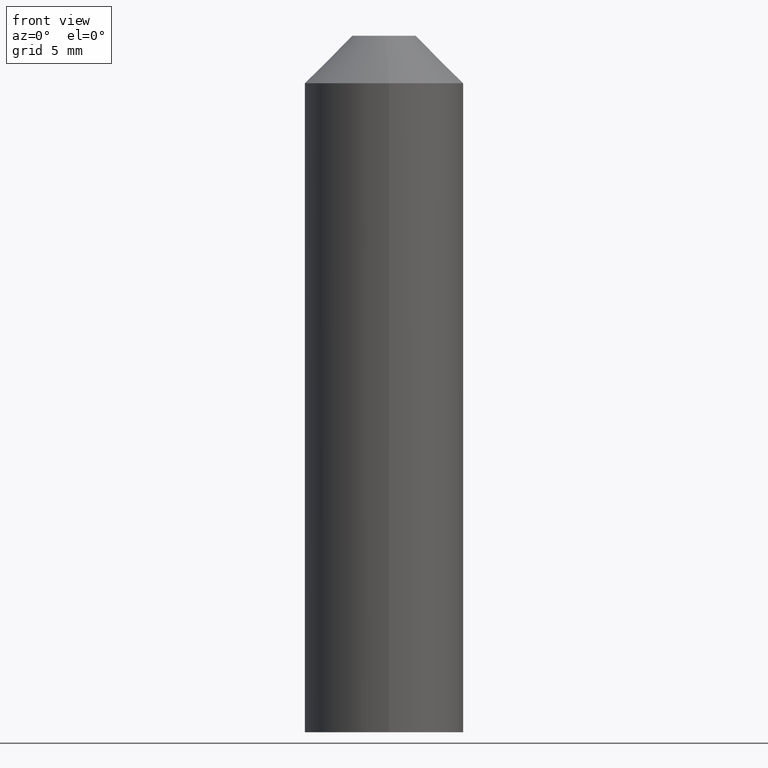
[diagram: clean part render]
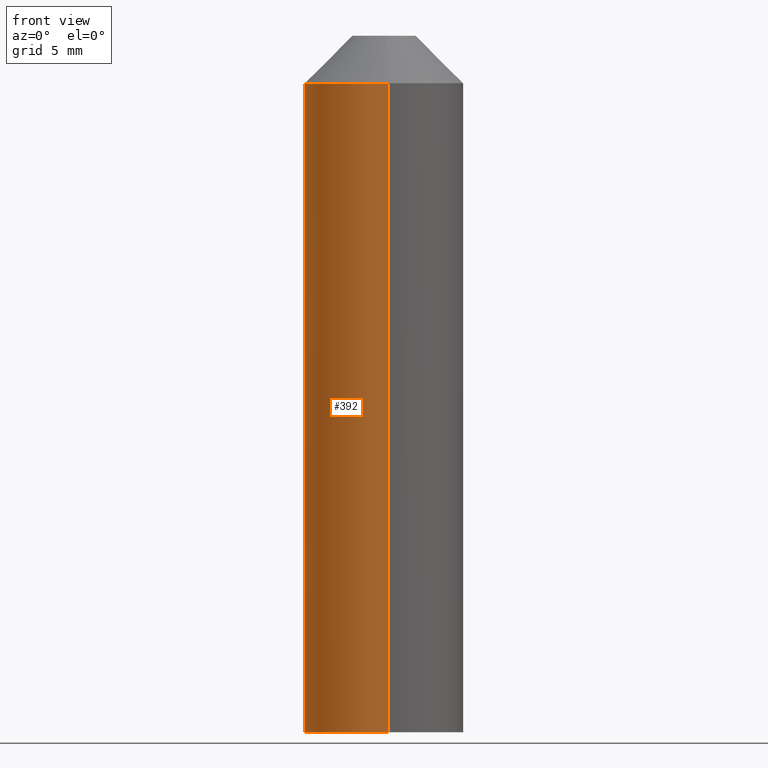
[diagram: same view with one face highlighted and labeled with its STEP entity id]
A machine part, front view. The second image highlights one B-rep face of the part: STEP entity #392.
In plain terms, the highlighted face is a freeform B-spline surface patch.
Its self-contained STEP definition (entity closure, byte-faithful):
#95=CARTESIAN_POINT('',(-0.305242697718337,4.990673992112464,40.999999999988383));
#96=VERTEX_POINT('',#95);
#121=CARTESIAN_POINT('',(0.305242697718337,-4.990673992112464,40.999999999988383));
#122=VERTEX_POINT('',#121);
#162=CARTESIAN_POINT('',(-5.0,0.0,41.0));
#163=VERTEX_POINT('',#162);
#164=CARTESIAN_POINT('',(-5.0,0.0,41.0));
#165=CARTESIAN_POINT('',(-4.999999999978329,4.703530334450193,40.999999999994188));
#166=CARTESIAN_POINT('',(-0.305242697718337,4.990673992112465,40.999999999988383));
#174=(BOUNDED_CURVE()B_SPLINE_CURVE(2,(#164,#165,#166),.UNSPECIFIED.,.F.,.U.)B_SPLINE_CURVE_WITH_KNOTS((3,3),(0.0,0.239332962238947),.UNSPECIFIED.)CURVE()GEOMETRIC_REPRESENTATION_ITEM()RATIONAL_B_SPLINE_CURVE((1.0,0.719603993286706,0.976072041666726))REPRESENTATION_ITEM(''));
#175=EDGE_CURVE('',#163,#96,#174,.T.);
#177=CARTESIAN_POINT('',(0.305242697718336,-4.990673992112466,40.999999999988376));
#178=CARTESIAN_POINT('',(0.152763816494045,-5.000000000008352,40.999999999988532));
#179=CARTESIAN_POINT('',(-4.205763E-011,-5.000000000008224,40.999999999988717));
#180=CARTESIAN_POINT('',(-5.000000000020386,-5.000000000003985,40.999999999994543));
#181=CARTESIAN_POINT('',(-5.0,0.0,41.0));
#189=(BOUNDED_CURVE()B_SPLINE_CURVE(2,(#177,#178,#179,#180,#181),.UNSPECIFIED.,.F.,.U.)B_SPLINE_CURVE_WITH_KNOTS((3,2,3),(0.739332962238947,0.750000000000000,1.0),.UNSPECIFIED.)CURVE()GEOMETRIC_REPRESENTATION_ITEM()RATIONAL_B_SPLINE_CURVE((0.976072041666726,0.987502787899842,1.0,0.707106781186548,1.0))REPRESENTATION_ITEM(''));
#190=EDGE_CURVE('',#122,#163,#189,.T.);
#289=CARTESIAN_POINT('',(-0.305242697700495,4.990673992107730,-1.134648E-013));
#290=VERTEX_POINT('',#289);
#291=CARTESIAN_POINT('',(-0.305242697718337,4.990673992112464,40.999999999988383));
#292=CARTESIAN_POINT('',(-0.305242697700495,4.990673992107730,-1.134648E-013));
#293=QUASI_UNIFORM_CURVE('',1,(#291,#292),.UNSPECIFIED.,.F.,.U.);
#294=EDGE_CURVE('',#96,#290,#293,.T.);
#298=CARTESIAN_POINT('',(0.305242697700496,-4.990673992107731,-1.133588E-013));
#299=VERTEX_POINT('',#298);
#300=CARTESIAN_POINT('',(0.305242697718337,-4.990673992112464,40.999999999988383));
#301=CARTESIAN_POINT('',(0.305242697700496,-4.990673992107731,-1.133588E-013));
#302=QUASI_UNIFORM_CURVE('',1,(#300,#301),.UNSPECIFIED.,.F.,.U.);
#303=EDGE_CURVE('',#122,#299,#302,.T.);
#338=CARTESIAN_POINT('',(0.305242697674285,-4.990673992109334,42.025000000000013));
#339=CARTESIAN_POINT('',(-4.685431294435048,-5.295916689783620,42.025000000000013));
#340=CARTESIAN_POINT('',(-4.990673992109334,-0.305242697674285,42.025000000000013));
#341=CARTESIAN_POINT('',(-5.295916689783620,4.685431294435048,42.025000000000013));
#342=CARTESIAN_POINT('',(-0.305242697674285,4.990673992109334,42.025000000000013));
#343=CARTESIAN_POINT('',(0.305242697674285,-4.990673992109334,-1.050625000000117));
#344=CARTESIAN_POINT('',(-4.685431294435048,-5.295916689783620,-1.050625000000117));
#345=CARTESIAN_POINT('',(-4.990673992109334,-0.305242697674285,-1.050625000000117));
#346=CARTESIAN_POINT('',(-5.295916689783620,4.685431294435048,-1.050625000000117));
#347=CARTESIAN_POINT('',(-0.305242697674285,4.990673992109334,-1.050625000000117));
#355=(BOUNDED_SURFACE()B_SPLINE_SURFACE(2,1,((#338,#343),(#339,#344),(#340,#345),(#341,#346),(#342,#347)),.UNSPECIFIED.,.F.,.F.,.U.)B_SPLINE_SURFACE_WITH_KNOTS((3,2,3),(2,2),(0.0,8.284271247461899,16.568542494923800),(0.0,43.075625000000130),.UNSPECIFIED.)GEOMETRIC_REPRESENTATION_ITEM()RATIONAL_B_SPLINE_SURFACE(((1.0,1.0),(0.707106781186548,0.707106781186548),(1.0,1.0),(0.707106781186548,0.707106781186548),(1.0,1.0)))REPRESENTATION_ITEM('')SURFACE());
#356=ORIENTED_EDGE('',*,*,#294,.T.);
#357=CARTESIAN_POINT('',(-5.0,0.0,-1.136868E-013));
#358=VERTEX_POINT('',#357);
#359=CARTESIAN_POINT('',(-5.0,0.0,-1.136868E-013));
#360=CARTESIAN_POINT('',(-4.999999999999998,4.703530334503726,-1.136868E-013));
#361=CARTESIAN_POINT('',(-0.305242697700495,4.990673992107732,-1.136868E-013));
#369=(BOUNDED_CURVE()B_SPLINE_CURVE(2,(#359,#360,#361),.UNSPECIFIED.,.F.,.U.)B_SPLINE_CURVE_WITH_KNOTS((3,3),(0.0,0.239332962241062),.UNSPECIFIED.)CURVE()GEOMETRIC_REPRESENTATION_ITEM()RATIONAL_B_SPLINE_CURVE((1.0,0.719603993284227,0.976072041671260))REPRESENTATION_ITEM(''));
#370=EDGE_CURVE('',#358,#290,#369,.T.);
#371=ORIENTED_EDGE('',*,*,#370,.F.);
#372=CARTESIAN_POINT('',(0.305242697700497,-4.990673992107731,-1.134748E-013));
#373=CARTESIAN_POINT('',(0.152763816506087,-4.999999999999999,-1.136868E-013));
#374=CARTESIAN_POINT('',(0.0,-5.0,-1.136868E-013));
#375=CARTESIAN_POINT('',(-5.000000000000001,-5.000000000000001,-1.136868E-013));
#376=CARTESIAN_POINT('',(-5.0,0.0,-1.136868E-013));
#384=(BOUNDED_CURVE()B_SPLINE_CURVE(2,(#372,#373,#374,#375,#376),.UNSPECIFIED.,.F.,.U.)B_SPLINE_CURVE_WITH_KNOTS((3,2,3),(0.739332962241062,0.750000000000000,1.0),.UNSPECIFIED.)CURVE()GEOMETRIC_REPRESENTATION_ITEM()RATIONAL_B_SPLINE_CURVE((0.976072041671259,0.987502787902320,1.0,0.707106781186548,1.0))REPRESENTATION_ITEM(''));
#385=EDGE_CURVE('',#299,#358,#384,.T.);
#386=ORIENTED_EDGE('',*,*,#385,.F.);
#387=ORIENTED_EDGE('',*,*,#303,.F.);
#388=ORIENTED_EDGE('',*,*,#190,.T.);
#389=ORIENTED_EDGE('',*,*,#175,.T.);
#390=EDGE_LOOP('',(#356,#371,#386,#387,#388,#389));
#391=FACE_OUTER_BOUND('',#390,.T.);
#392=ADVANCED_FACE('',(#391),#355,.T.);